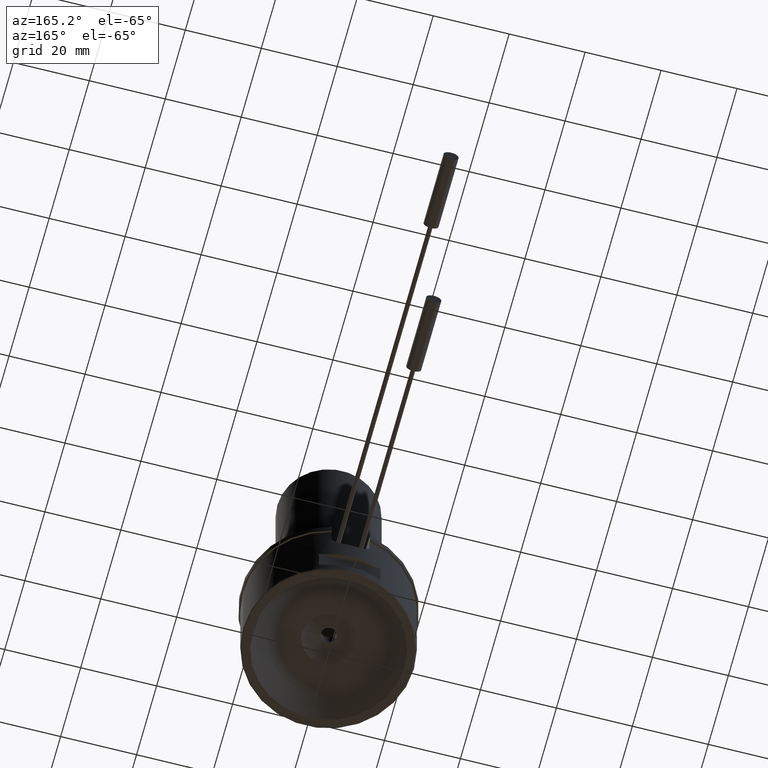
[diagram: clean part render]
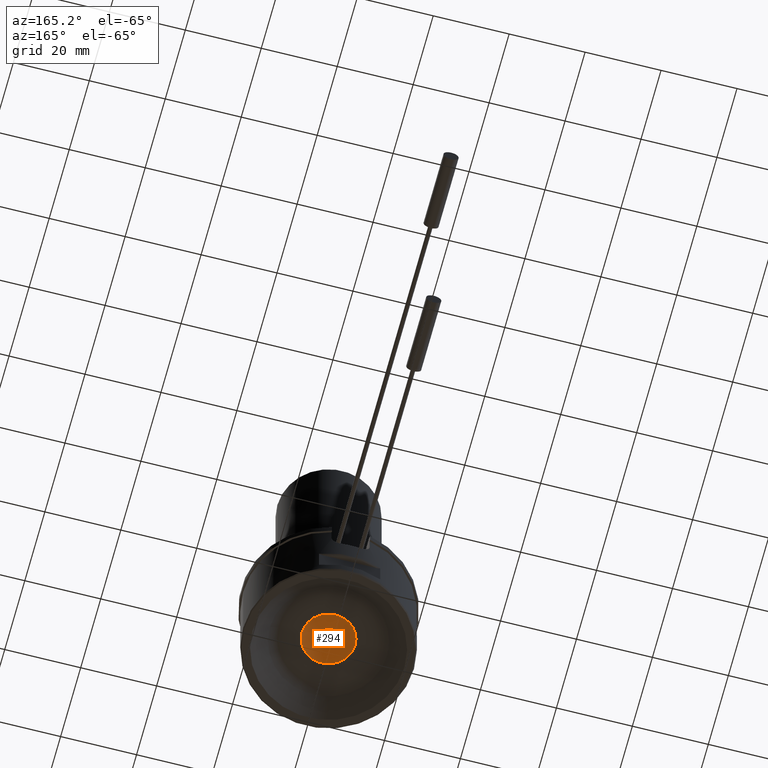
[diagram: same view with one face highlighted and labeled with its STEP entity id]
A machine part, auxiliary view. The second image highlights one B-rep face of the part: STEP entity #294.
In plain terms, the highlighted spherical surface has radius 11 mm.
Its self-contained STEP definition (entity closure, byte-faithful):
#23=SPHERICAL_SURFACE('',#1063,11.);
#294=ADVANCED_FACE('',(#372,#373),#23,.F.);
#372=FACE_BOUND('',#442,.T.);
#373=FACE_BOUND('',#443,.T.);
#442=EDGE_LOOP('',(#593));
#443=EDGE_LOOP('',(#594));
#593=ORIENTED_EDGE('',*,*,#898,.T.);
#594=ORIENTED_EDGE('',*,*,#897,.F.);
#799=VERTEX_POINT('',#1661);
#800=VERTEX_POINT('',#1664);
#897=EDGE_CURVE('',#799,#799,#977,.T.);
#898=EDGE_CURVE('',#800,#800,#978,.T.);
#977=CIRCLE('',#1060,2.00000000000749);
#978=CIRCLE('',#1062,6.98212002188452);
#1060=AXIS2_PLACEMENT_3D('',#1660,#1278,#1279);
#1062=AXIS2_PLACEMENT_3D('',#1663,#1282,#1283);
#1063=AXIS2_PLACEMENT_3D('',#1665,#1284,#1285);
#1278=DIRECTION('',(0.,0.,-1.));
#1279=DIRECTION('',(1.,0.,0.));
#1282=DIRECTION('',(0.,0.,-1.));
#1283=DIRECTION('',(1.,0.,0.));
#1284=DIRECTION('',(0.,-6.12323399573677E-17,1.));
#1285=DIRECTION('',(0.,-1.,0.));
#1660=CARTESIAN_POINT('',(0.,0.,8.31665382639197));
#1661=CARTESIAN_POINT('',(2.00000000000749,0.,8.31665382639197));
#1663=CARTESIAN_POINT('',(0.,0.,5.99999999999996));
#1664=CARTESIAN_POINT('',(6.98212002188452,0.,5.99999999999996));
#1665=CARTESIAN_POINT('',(0.,0.,-2.5));